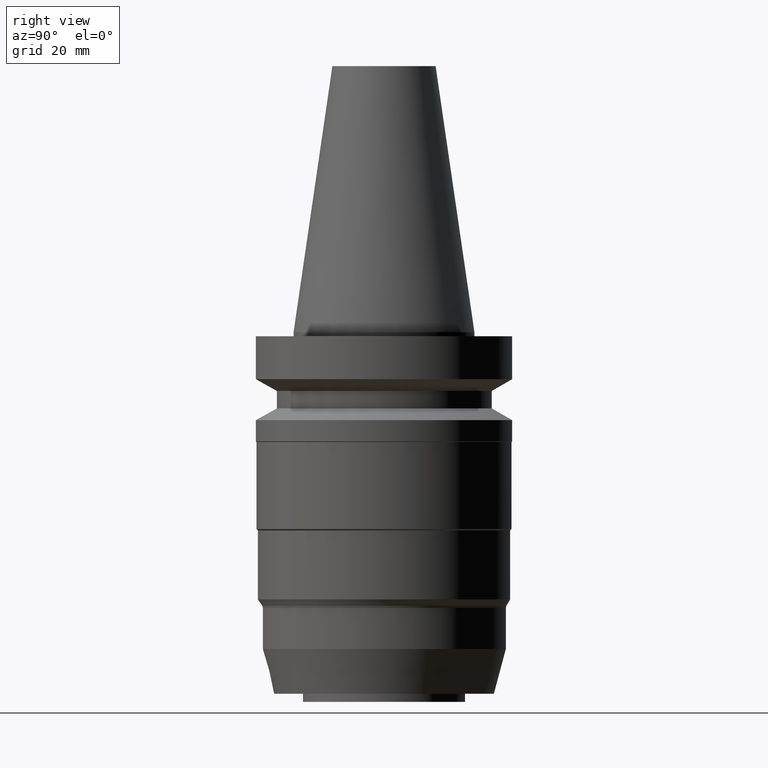
[diagram: clean part render]
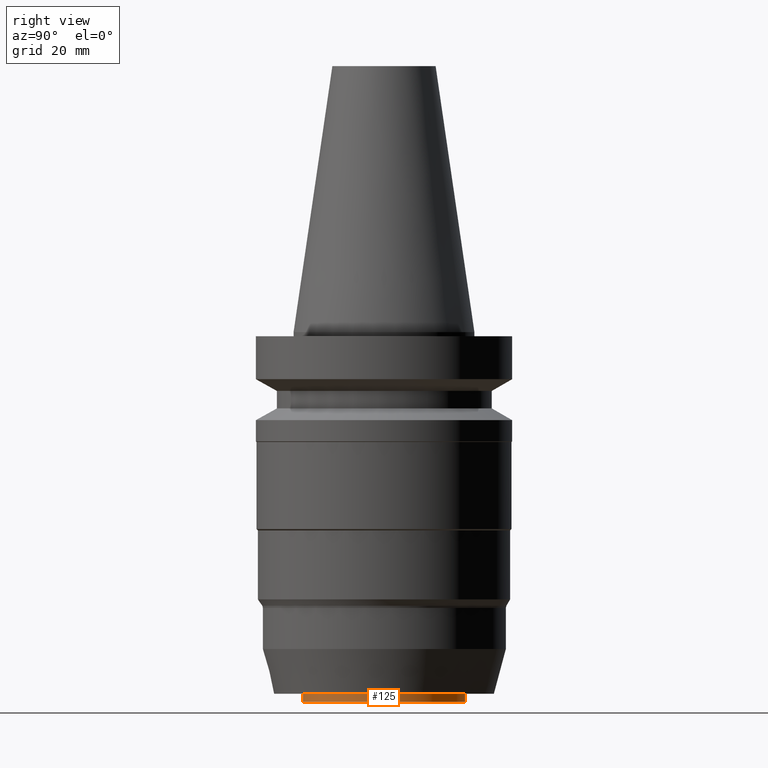
[diagram: same view with one face highlighted and labeled with its STEP entity id]
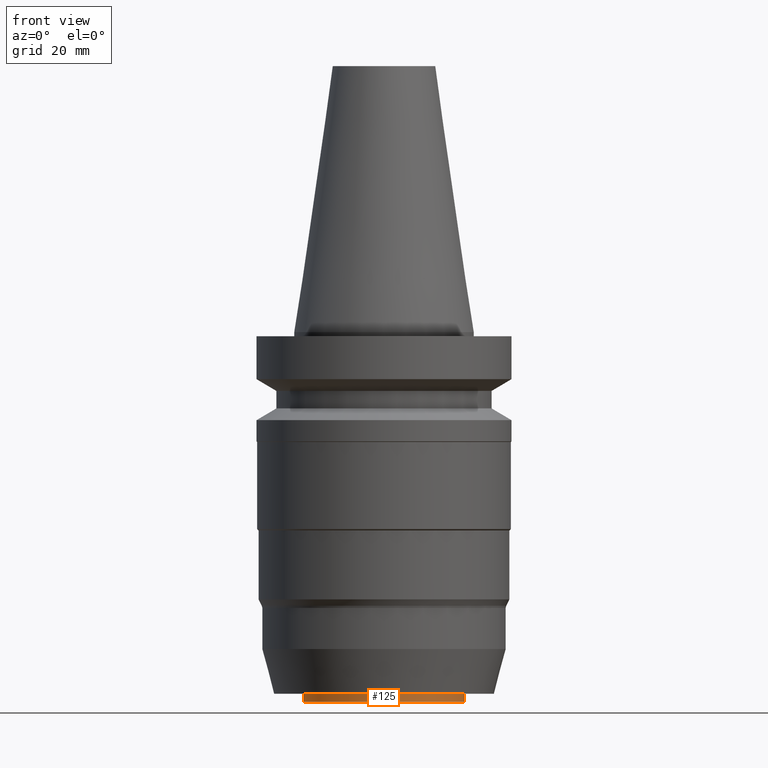
[diagram: same view with one face highlighted and labeled with its STEP entity id]
A machine part, right view. The second image highlights one B-rep face of the part: STEP entity #125.
A second angle (front view) of the same face is appended — the face is thin or edge-on in the first view.
In plain terms, the highlighted cylindrical surface (bore or boss wall) has radius 19.92 mm, axis along (0, -0, -1).
Its self-contained STEP definition (entity closure, byte-faithful):
#64=EDGE_CURVE('Unnamed[1]',#181,#181,#182,.T.);
#71=EDGE_CURVE('Unnamed[1]',#192,#192,#193,.T.);
#125=ADVANCED_FACE('Unnamed[1]',(#276,#277),#278,.T.);
#181=VERTEX_POINT('',#346);
#182=CIRCLE('',#347,19.9200000000013);
#192=VERTEX_POINT('',#360);
#193=CIRCLE('',#361,19.9200000000008);
#276=FACE_BOUND('',#465,.T.);
#277=FACE_BOUND('',#466,.T.);
#278=CYLINDRICAL_SURFACE('',#467,19.9200000000011);
#346=CARTESIAN_POINT('',(5.44355502220996E-015,19.9200000000014,-88.8999999999995));
#347=AXIS2_PLACEMENT_3D('',#542,#543,#544);
#360=CARTESIAN_POINT('',(5.56601970212473E-015,19.9200000000008,-90.9000000000002));
#361=AXIS2_PLACEMENT_3D('',#554,#555,#556);
#465=EDGE_LOOP('',(#649));
#466=EDGE_LOOP('',(#650));
#467=AXIS2_PLACEMENT_3D('',#651,#652,#653);
#542=CARTESIAN_POINT('',(5.44355502220996E-015,1.33762043154158E-014,-88.8999999999995));
#543=DIRECTION('',(6.12323399573677E-017,-4.10767166376342E-016,-1.0));
#544=DIRECTION('',(2.03250820441117E-032,1.0,-4.10767166376342E-016));
#554=CARTESIAN_POINT('',(5.56601970212473E-015,1.25546699826628E-014,-90.9000000000002));
#555=DIRECTION('',(6.12323399573677E-017,-4.10767166376342E-016,-1.0));
#556=DIRECTION('',(2.03250820441117E-032,1.0,-4.10767166376342E-016));
#649=ORIENTED_EDGE('',*,*,#71,.F.);
#650=ORIENTED_EDGE('',*,*,#64,.T.);
#651=CARTESIAN_POINT('',(5.50478736216734E-015,1.29654371490393E-014,-89.8999999999999));
#652=DIRECTION('',(6.12323399573677E-017,-4.10767166376342E-016,-1.0));
#653=DIRECTION('',(2.03250820441117E-032,1.0,-4.10767166376342E-016));